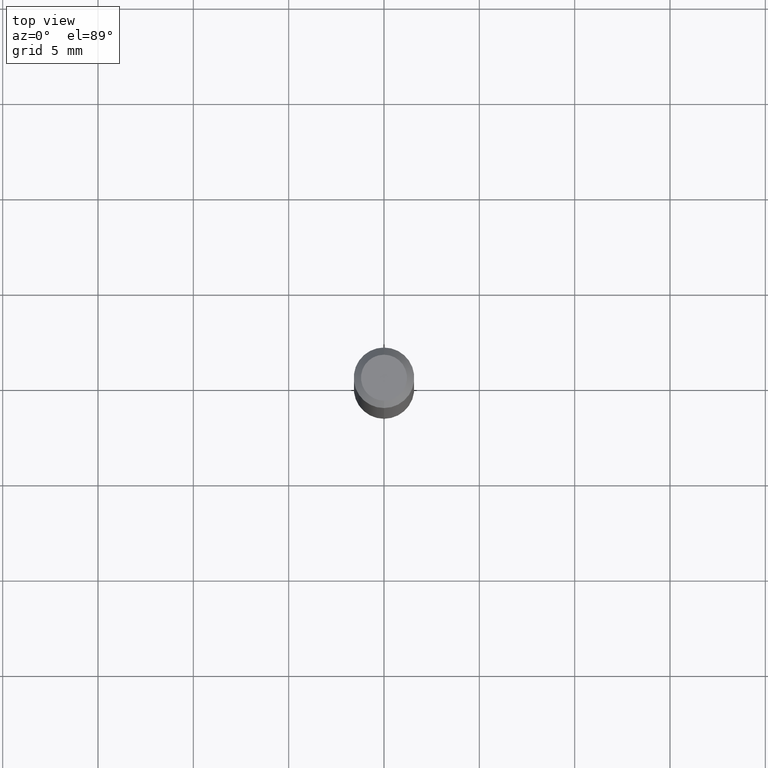
[diagram: clean part render]
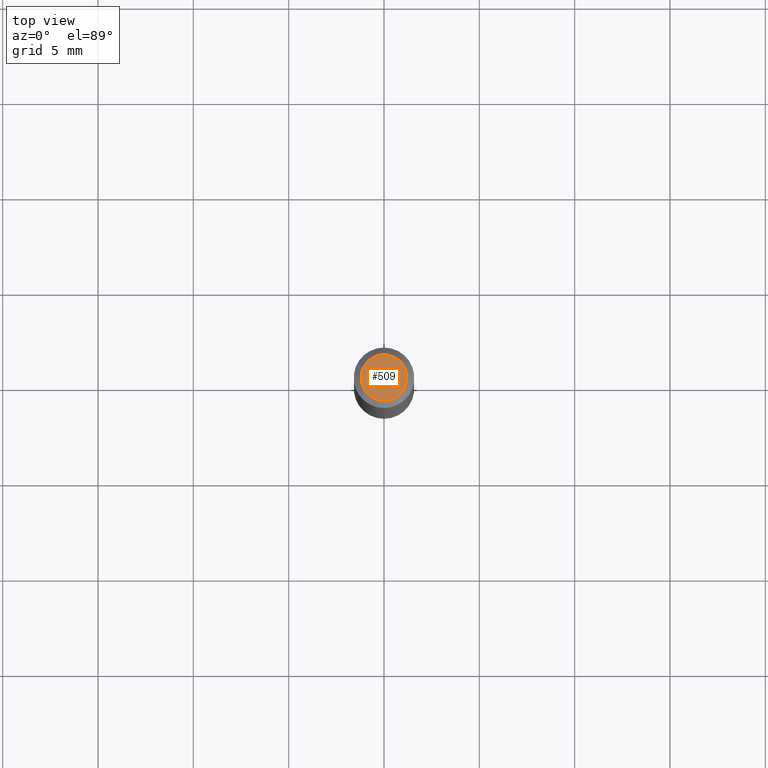
[diagram: same view with one face highlighted and labeled with its STEP entity id]
A machine part, top view. The second image highlights one B-rep face of the part: STEP entity #509.
In plain terms, the highlighted planar face has unit normal (0, -0, -1).
Its self-contained STEP definition (entity closure, byte-faithful):
#59 = CARTESIAN_POINT ( 'NONE',  ( -3.773273898774340269E-16, -0.04749999999999999362, -1.623010672770032212E-16 ) ) ;
#64 = DIRECTION ( 'NONE',  ( -2.445465007158633692E-29, 3.491486779265324816E-15, 1.000000000000000000 ) ) ;
#108 = CARTESIAN_POINT ( 'NONE',  ( 3.316907271900976096E-16, 0.04749999999999999362, -3.299189666611560624E-16 ) ) ;
#112 = AXIS2_PLACEMENT_3D ( 'NONE', #245, #476, #483 ) ;
#128 = EDGE_CURVE ( 'NONE', #349, #194, #301, .T. ) ;
#141 = CARTESIAN_POINT ( 'NONE',  ( 8.024712458788022514E-45, -1.145719827323074954E-30, -3.281466892921061726E-16 ) ) ;
#149 = CIRCLE ( 'NONE', #425, 0.04749999999999999362 ) ;
#166 = AXIS2_PLACEMENT_3D ( 'NONE', #108, #228, #272 ) ;
#173 = EDGE_LOOP ( 'NONE', ( #341, #451 ) ) ;
#186 = DIRECTION ( 'NONE',  ( -6.982962677686266711E-15, -1.000000000000000000, 3.491486779265325210E-15 ) ) ;
#194 = VERTEX_POINT ( 'NONE', #277 ) ;
#228 = DIRECTION ( 'NONE',  ( 2.445465007158633411E-29, -3.491486779265324816E-15, -1.000000000000000000 ) ) ;
#245 = CARTESIAN_POINT ( 'NONE',  ( 8.024712458788022514E-45, -1.145719827323074954E-30, -3.281466892921061726E-16 ) ) ;
#272 = DIRECTION ( 'NONE',  ( 6.982962677686265922E-15, 1.000000000000000000, -3.491486779265324816E-15 ) ) ;
#277 = CARTESIAN_POINT ( 'NONE',  ( 3.840629472727447874E-16, 0.04749999999999999362, -4.939923113072091241E-16 ) ) ;
#289 = EDGE_CURVE ( 'NONE', #194, #349, #149, .T. ) ;
#301 = CIRCLE ( 'NONE', #112, 0.04749999999999999362 ) ;
#341 = ORIENTED_EDGE ( 'NONE', *, *, #289, .T. ) ;
#349 = VERTEX_POINT ( 'NONE', #59 ) ;
#422 = FACE_OUTER_BOUND ( 'NONE', #173, .T. ) ;
#425 = AXIS2_PLACEMENT_3D ( 'NONE', #141, #64, #186 ) ;
#451 = ORIENTED_EDGE ( 'NONE', *, *, #128, .T. ) ;
#476 = DIRECTION ( 'NONE',  ( -2.445465007158633692E-29, 3.491486779265324816E-15, 1.000000000000000000 ) ) ;
#483 = DIRECTION ( 'NONE',  ( -6.982962677686266711E-15, -1.000000000000000000, 3.491486779265325210E-15 ) ) ;
#501 = PLANE ( 'NONE',  #166 ) ;
#509 = ADVANCED_FACE ( 'NONE', ( #422 ), #501, .F. ) ;